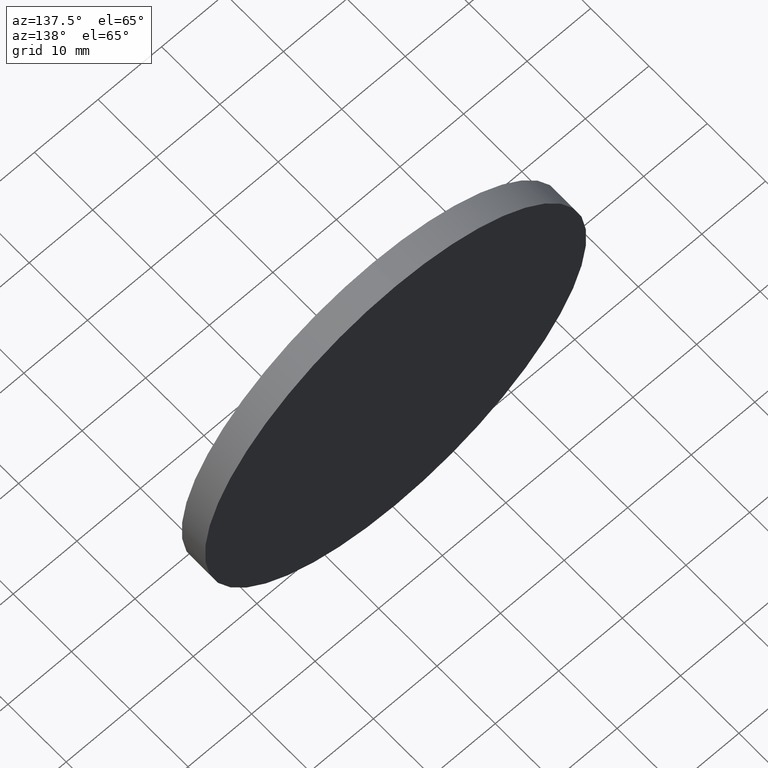
[diagram: clean part render]
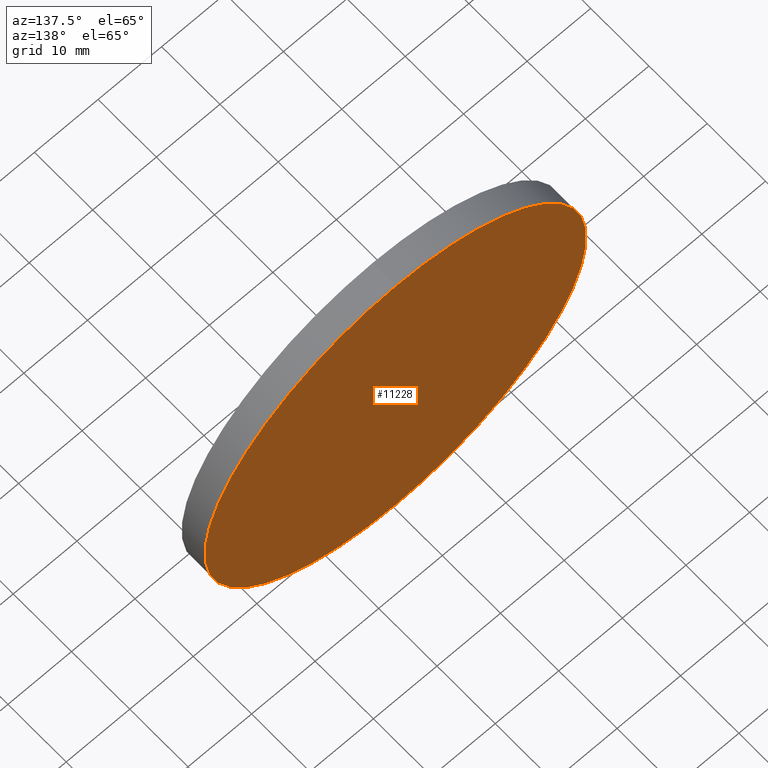
[diagram: same view with one face highlighted and labeled with its STEP entity id]
A machine part, auxiliary view. The second image highlights one B-rep face of the part: STEP entity #11228.
In plain terms, the highlighted planar face has unit normal (0, 1, 0).
Its self-contained STEP definition (entity closure, byte-faithful):
#144 = VERTEX_POINT ( 'NONE', #7774 ) ;
#659 = EDGE_CURVE ( 'NONE', #144, #4172, #10434, .T. ) ;
#1394 = DIRECTION ( 'NONE',  ( 0.000000000000000000, -0.000000000000000000, 1.000000000000000000 ) ) ;
#1607 = AXIS2_PLACEMENT_3D ( 'NONE', #4561, #9390, #4601 ) ;
#2609 = AXIS2_PLACEMENT_3D ( 'NONE', #12082, #9313, #11282 ) ;
#3297 = PLANE ( 'NONE',  #3445 ) ;
#3445 = AXIS2_PLACEMENT_3D ( 'NONE', #6289, #7162, #1394 ) ;
#4172 = VERTEX_POINT ( 'NONE', #10856 ) ;
#4561 = CARTESIAN_POINT ( 'NONE',  ( 0.000000000000000000, 2.000000000000000000, 0.000000000000000000 ) ) ;
#4601 = DIRECTION ( 'NONE',  ( 0.000000000000000000, 0.000000000000000000, 1.000000000000000000 ) ) ;
#4835 = ORIENTED_EDGE ( 'NONE', *, *, #8898, .T. ) ;
#6289 = CARTESIAN_POINT ( 'NONE',  ( 0.000000000000000000, 2.000000000000000000, 0.000000000000000000 ) ) ;
#6906 = EDGE_LOOP ( 'NONE', ( #4835, #7472 ) ) ;
#7162 = DIRECTION ( 'NONE',  ( 0.000000000000000000, 1.000000000000000000, 0.000000000000000000 ) ) ;
#7472 = ORIENTED_EDGE ( 'NONE', *, *, #659, .T. ) ;
#7774 = CARTESIAN_POINT ( 'NONE',  ( 3.673940397442059178E-15, 2.000000000000000000, 30.00000000000000000 ) ) ;
#8003 = CIRCLE ( 'NONE', #2609, 30.00000000000000000 ) ;
#8898 = EDGE_CURVE ( 'NONE', #4172, #144, #8003, .T. ) ;
#9313 = DIRECTION ( 'NONE',  ( 0.000000000000000000, 1.000000000000000000, 0.000000000000000000 ) ) ;
#9390 = DIRECTION ( 'NONE',  ( 0.000000000000000000, 1.000000000000000000, 0.000000000000000000 ) ) ;
#10434 = CIRCLE ( 'NONE', #1607, 30.00000000000000000 ) ;
#10800 = FACE_OUTER_BOUND ( 'NONE', #6906, .T. ) ;
#10856 = CARTESIAN_POINT ( 'NONE',  ( 0.000000000000000000, 2.000000000000000000, -30.00000000000000000 ) ) ;
#11228 = ADVANCED_FACE ( 'NONE', ( #10800 ), #3297, .T. ) ;
#11282 = DIRECTION ( 'NONE',  ( 0.000000000000000000, 0.000000000000000000, 1.000000000000000000 ) ) ;
#12082 = CARTESIAN_POINT ( 'NONE',  ( 0.000000000000000000, 2.000000000000000000, 0.000000000000000000 ) ) ;